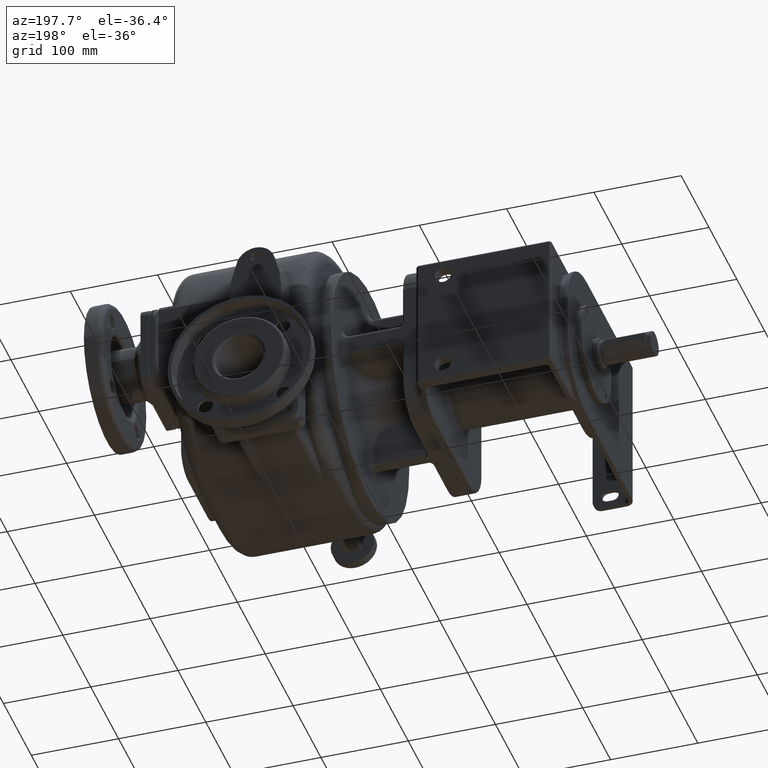
[diagram: clean part render]
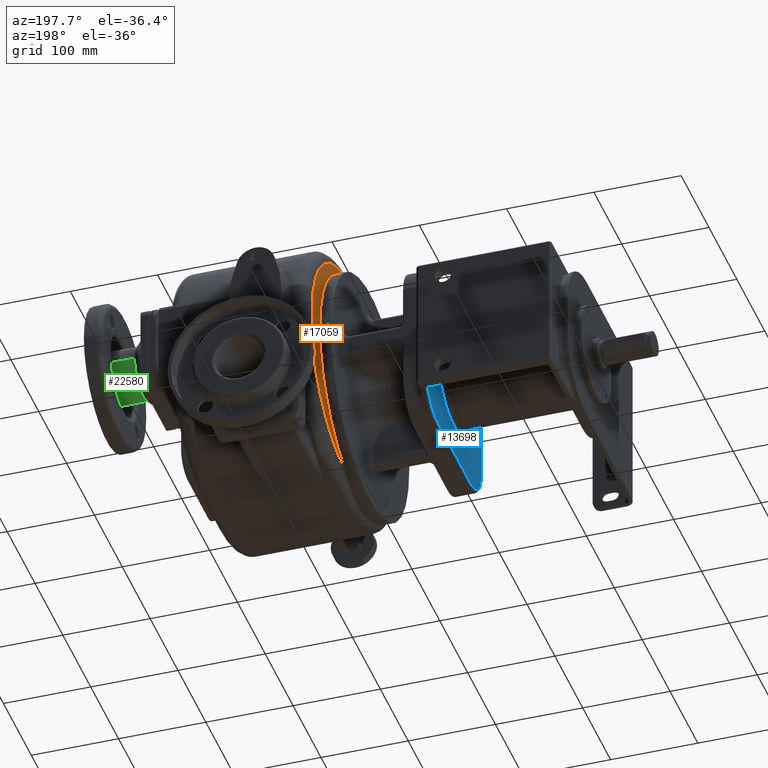
[diagram: same view with three faces highlighted in distinct colors, each labeled with its STEP entity id]
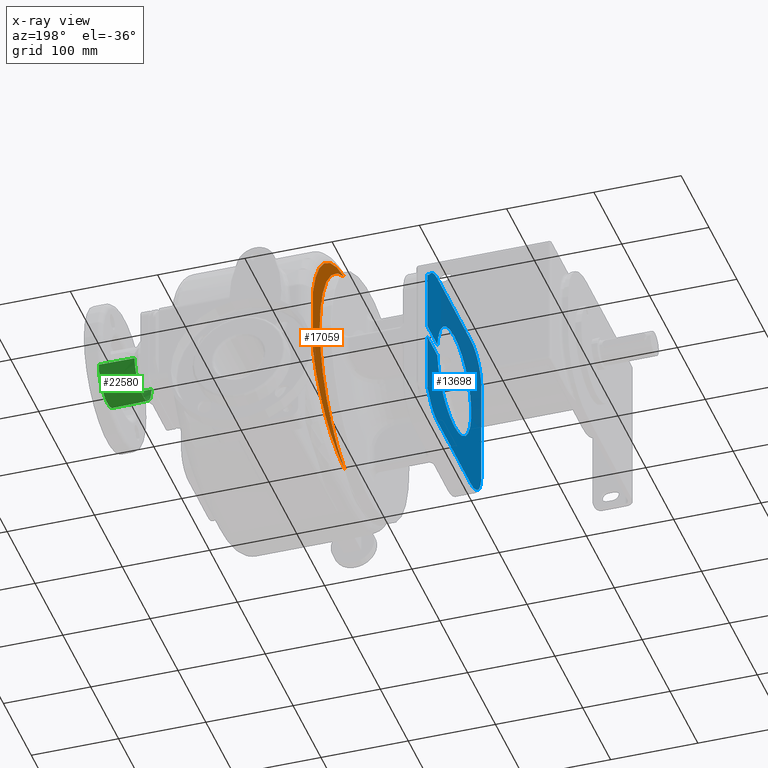
[diagram: x-ray of the same camera — body ghosted, the three highlighted faces saturated]
A machine part, auxiliary view with three faces highlighted in distinct colors.
The next image is the same camera in x-ray (body ghosted, the three faces saturated) — at least one of them is partly hidden behind the body in this view.
Their STEP definitions:

[orange] entity #17059 — the highlighted planar face has unit normal (1, 0, 0).
#2342=CARTESIAN_POINT('',(-5.5E1,1.5E2,0.E0));
#2343=DIRECTION('',(-1.E0,0.E0,0.E0));
#2344=DIRECTION('',(0.E0,3.789755434408E-1,9.254066876102E-1));
#2345=AXIS2_PLACEMENT_3D('',#2342,#2343,#2344);
#2347=CARTESIAN_POINT('',(-5.5E1,1.5E2,0.E0));
#2348=DIRECTION('',(-1.E0,0.E0,0.E0));
#2349=DIRECTION('',(0.E0,1.E0,0.E0));
#2350=AXIS2_PLACEMENT_3D('',#2347,#2348,#2349);
#2352=CARTESIAN_POINT('',(-5.5E1,1.935088238347E2,0.E0));
#2353=DIRECTION('',(-1.E0,0.E0,0.E0));
#2354=DIRECTION('',(0.E0,9.233049313065E-1,-3.840677073447E-1));
#2355=AXIS2_PLACEMENT_3D('',#2352,#2353,#2354);
#2357=DIRECTION('',(0.E0,8.685984680238E-12,-1.E0));
#2358=VECTOR('',#2357,8.177063911726E1);
#2359=CARTESIAN_POINT('',(-5.5E1,3.140000000005E2,3.164960389478E1));
#2360=LINE('',#2359,#2358);
#2361=CARTESIAN_POINT('',(-5.5E1,1.873961078411E2,0.E0));
#2362=DIRECTION('',(-1.E0,0.E0,0.E0));
#2363=DIRECTION('',(0.E0,1.200035880505E-1,9.927734579727E-1));
#2364=AXIS2_PLACEMENT_3D('',#2361,#2362,#2363);
#11140=CARTESIAN_POINT('',(-5.5E1,3.140000000005E2,3.164960389478E1));
#11141=CARTESIAN_POINT('',(-5.5E1,3.140000000012E2,-5.012103522249E1));
#11142=VERTEX_POINT('',#11140);
#11143=VERTEX_POINT('',#11141);
#11522=CARTESIAN_POINT('',(-5.5E1,2.030565760817E2,1.295569362654E2));
#11523=CARTESIAN_POINT('',(-5.5E1,2.9E2,-4.973797150321E-14));
#11524=VERTEX_POINT('',#11522);
#11525=VERTEX_POINT('',#11523);
#11526=CARTESIAN_POINT('',(-5.5E1,2.012857778968E2,-1.302680658700E2));
#11527=VERTEX_POINT('',#11526);
#17043=CARTESIAN_POINT('',(-5.5E1,1.5E2,0.E0));
#17044=DIRECTION('',(1.E0,0.E0,0.E0));
#17045=DIRECTION('',(0.E0,0.E0,1.E0));
#17046=AXIS2_PLACEMENT_3D('',#17043,#17044,#17045);
#17047=PLANE('',#17046);
#17049=ORIENTED_EDGE('',*,*,#17048,.T.);
#17050=ORIENTED_EDGE('',*,*,#17027,.T.);
#17052=ORIENTED_EDGE('',*,*,#17051,.F.);
#17054=ORIENTED_EDGE('',*,*,#17053,.F.);
#17056=ORIENTED_EDGE('',*,*,#17055,.F.);
#17057=EDGE_LOOP('',(#17049,#17050,#17052,#17054,#17056));
#17058=FACE_OUTER_BOUND('',#17057,.F.);
#17059=ADVANCED_FACE('',(#17058),#17047,.F.);
#2346=CIRCLE('',#2345,1.4E2);
#2351=CIRCLE('',#2350,1.4E2);
#2356=CIRCLE('',#2355,1.305E2);
#2365=CIRCLE('',#2364,1.305E2);
#17027=EDGE_CURVE('',#11525,#11527,#2351,.T.);
#17048=EDGE_CURVE('',#11524,#11525,#2346,.T.);
#17051=EDGE_CURVE('',#11143,#11527,#2356,.T.);
#17053=EDGE_CURVE('',#11142,#11143,#2360,.T.);
#17055=EDGE_CURVE('',#11524,#11142,#2365,.T.);

[blue] entity #13698 — the highlighted planar face has unit normal (1, 0, 0).
#229=DIRECTION('',(-6.578854630226E-11,-1.E0,0.E0));
#230=VECTOR('',#229,3.640297037011E1);
#231=CARTESIAN_POINT('',(-1.645E2,2.47E2,-7.E0));
#232=LINE('',#231,#230);
#233=DIRECTION('',(6.578854630226E-11,1.E0,0.E0));
#234=VECTOR('',#233,3.640297037011E1);
#235=CARTESIAN_POINT('',(-1.645000000024E2,2.105970296299E2,7.E0));
#236=LINE('',#235,#234);
#237=DIRECTION('',(-8.555937387140E-11,0.E0,1.E0));
#238=VECTOR('',#237,7.035088935933E1);
#239=CARTESIAN_POINT('',(-1.645E2,2.47E2,7.E0));
#240=LINE('',#239,#238);
#241=CARTESIAN_POINT('',(-1.645E2,2.5E2,9.E1));
#242=DIRECTION('',(1.E0,0.E0,0.E0));
#243=DIRECTION('',(0.E0,-8.E-1,-6.E-1));
#244=AXIS2_PLACEMENT_3D('',#241,#242,#243);
#246=CARTESIAN_POINT('',(-1.645E2,2.1E2,6.E1));
#247=DIRECTION('',(-1.E0,0.E0,0.E0));
#248=DIRECTION('',(0.E0,0.E0,1.E0));
#249=AXIS2_PLACEMENT_3D('',#246,#247,#248);
#251=DIRECTION('',(0.E0,1.E0,0.E0));
#252=VECTOR('',#251,1.2E2);
#253=CARTESIAN_POINT('',(-1.645E2,9.E1,9.7E1));
#254=LINE('',#253,#252);
#255=CARTESIAN_POINT('',(-1.645E2,9.E1,6.E1));
#256=DIRECTION('',(-1.E0,0.E0,0.E0));
#257=DIRECTION('',(0.E0,-1.E0,0.E0));
#258=AXIS2_PLACEMENT_3D('',#255,#256,#257);
#260=DIRECTION('',(0.E0,0.E0,1.E0));
#261=VECTOR('',#260,1.2E2);
#262=CARTESIAN_POINT('',(-1.645E2,5.3E1,-6.E1));
#263=LINE('',#262,#261);
#264=CARTESIAN_POINT('',(-1.645E2,9.E1,-6.E1));
#265=DIRECTION('',(-1.E0,0.E0,0.E0));
#266=DIRECTION('',(0.E0,0.E0,-1.E0));
#267=AXIS2_PLACEMENT_3D('',#264,#265,#266);
#269=DIRECTION('',(0.E0,-1.E0,0.E0));
#270=VECTOR('',#269,1.2E2);
#271=CARTESIAN_POINT('',(-1.645E2,2.1E2,-9.7E1));
#272=LINE('',#271,#270);
#273=CARTESIAN_POINT('',(-1.645E2,2.1E2,-6.E1));
#274=DIRECTION('',(-1.E0,0.E0,0.E0));
#275=DIRECTION('',(0.E0,8.E-1,-6.E-1));
#276=AXIS2_PLACEMENT_3D('',#273,#274,#275);
#278=CARTESIAN_POINT('',(-1.645E2,2.5E2,-9.E1));
#279=DIRECTION('',(1.E0,0.E0,0.E0));
#280=DIRECTION('',(0.E0,-2.307692307692E-1,9.730085108210E-1));
#281=AXIS2_PLACEMENT_3D('',#278,#279,#280);
#283=DIRECTION('',(8.531737829603E-11,0.E0,1.E0));
#284=VECTOR('',#283,7.035088935933E1);
#285=CARTESIAN_POINT('',(-1.645000000060E2,2.47E2,-7.735088935933E1));
#286=LINE('',#285,#284);
#310=CARTESIAN_POINT('',(-1.645000000024E2,2.105970296299E2,7.E0));
#312=CARTESIAN_POINT('',(-1.645E2,1.5E2,0.E0));
#313=DIRECTION('',(1.E0,0.E0,0.E0));
#314=DIRECTION('',(0.E0,9.933939283632E-1,1.147540983628E-1));
#315=AXIS2_PLACEMENT_3D('',#312,#313,#314);
#12596=CARTESIAN_POINT('',(-1.645E2,5.3E1,6.E1));
#12597=CARTESIAN_POINT('',(-1.645E2,9.E1,9.7E1));
#12598=VERTEX_POINT('',#12596);
#12599=VERTEX_POINT('',#12597);
#12604=CARTESIAN_POINT('',(-1.645E2,2.1E2,9.7E1));
#12605=VERTEX_POINT('',#12604);
#12608=CARTESIAN_POINT('',(-1.645E2,2.396E2,8.22E1));
#12609=VERTEX_POINT('',#12608);
#12612=CARTESIAN_POINT('',(-1.645E2,2.396E2,-8.22E1));
#12613=CARTESIAN_POINT('',(-1.645E2,2.1E2,-9.7E1));
#12614=VERTEX_POINT('',#12612);
#12615=VERTEX_POINT('',#12613);
#12620=CARTESIAN_POINT('',(-1.645E2,9.E1,-9.7E1));
#12621=VERTEX_POINT('',#12620);
#12624=CARTESIAN_POINT('',(-1.645E2,5.3E1,-6.E1));
#12625=VERTEX_POINT('',#12624);
#12676=CARTESIAN_POINT('',(-1.645E2,2.47E2,-7.735088935933E1));
#12677=VERTEX_POINT('',#12676);
#12680=CARTESIAN_POINT('',(-1.645E2,2.47E2,7.735088935933E1));
#12681=VERTEX_POINT('',#12680);
#12702=CARTESIAN_POINT('',(-1.645E2,2.47E2,-7.E0));
#12703=CARTESIAN_POINT('',(-1.645000000024E2,2.105970296299E2,-7.E0));
#12704=VERTEX_POINT('',#12702);
#12705=VERTEX_POINT('',#12703);
#12732=VERTEX_POINT('',#310);
#12733=CARTESIAN_POINT('',(-1.645E2,2.47E2,7.E0));
#12734=VERTEX_POINT('',#12733);
#13664=CARTESIAN_POINT('',(-1.645E2,1.5E2,0.E0));
#13665=DIRECTION('',(1.E0,0.E0,0.E0));
#13666=DIRECTION('',(0.E0,0.E0,1.E0));
#13667=AXIS2_PLACEMENT_3D('',#13664,#13665,#13666);
#13668=PLANE('',#13667);
#13669=ORIENTED_EDGE('',*,*,#13654,.T.);
#13671=ORIENTED_EDGE('',*,*,#13670,.F.);
#13673=ORIENTED_EDGE('',*,*,#13672,.T.);
#13675=ORIENTED_EDGE('',*,*,#13674,.T.);
#13677=ORIENTED_EDGE('',*,*,#13676,.F.);
#13679=ORIENTED_EDGE('',*,*,#13678,.F.);
#13681=ORIENTED_EDGE('',*,*,#13680,.F.);
#13683=ORIENTED_EDGE('',*,*,#13682,.F.);
#13685=ORIENTED_EDGE('',*,*,#13684,.F.);
#13687=ORIENTED_EDGE('',*,*,#13686,.F.);
#13689=ORIENTED_EDGE('',*,*,#13688,.F.);
#13691=ORIENTED_EDGE('',*,*,#13690,.F.);
#13693=ORIENTED_EDGE('',*,*,#13692,.F.);
#13695=ORIENTED_EDGE('',*,*,#13694,.T.);
#13696=EDGE_LOOP('',(#13669,#13671,#13673,#13675,#13677,#13679,#13681,#13683,
#13685,#13687,#13689,#13691,#13693,#13695));
#13697=FACE_OUTER_BOUND('',#13696,.F.);
#13698=ADVANCED_FACE('',(#13697),#13668,.F.);
#245=CIRCLE('',#244,1.3E1);
#250=CIRCLE('',#249,3.7E1);
#259=CIRCLE('',#258,3.7E1);
#268=CIRCLE('',#267,3.7E1);
#277=CIRCLE('',#276,3.7E1);
#282=CIRCLE('',#281,1.3E1);
#316=CIRCLE('',#315,6.1E1);
#13654=EDGE_CURVE('',#12704,#12705,#232,.T.);
#13670=EDGE_CURVE('',#12732,#12705,#316,.T.);
#13672=EDGE_CURVE('',#12732,#12734,#236,.T.);
#13674=EDGE_CURVE('',#12734,#12681,#240,.T.);
#13676=EDGE_CURVE('',#12609,#12681,#245,.T.);
#13678=EDGE_CURVE('',#12605,#12609,#250,.T.);
#13680=EDGE_CURVE('',#12599,#12605,#254,.T.);
#13682=EDGE_CURVE('',#12598,#12599,#259,.T.);
#13684=EDGE_CURVE('',#12625,#12598,#263,.T.);
#13686=EDGE_CURVE('',#12621,#12625,#268,.T.);
#13688=EDGE_CURVE('',#12615,#12621,#272,.T.);
#13690=EDGE_CURVE('',#12614,#12615,#277,.T.);
#13692=EDGE_CURVE('',#12677,#12614,#282,.T.);
#13694=EDGE_CURVE('',#12677,#12704,#286,.T.);

[green] entity #22580 — the highlighted conical surface has half-angle 0.699 deg.
#6407=CARTESIAN_POINT('',(1.51E2,2.79E2,-9.5E0));
#6408=DIRECTION('',(1.E0,0.E0,0.E0));
#6409=DIRECTION('',(0.E0,-1.E0,0.E0));
#6410=AXIS2_PLACEMENT_3D('',#6407,#6408,#6409);
#6417=CARTESIAN_POINT('',(1.920060966544E2,2.79E2,-9.5E0));
#6418=DIRECTION('',(1.E0,0.E0,0.E0));
#6419=DIRECTION('',(0.E0,-1.E0,0.E0));
#6420=AXIS2_PLACEMENT_3D('',#6417,#6418,#6419);
#6422=DIRECTION('',(-9.999256588475E-1,-1.219330875238E-2,0.E0));
#6423=VECTOR('',#6422,4.100914532150E1);
#6424=CARTESIAN_POINT('',(1.920060966544E2,3.096500371706E2,-9.5E0));
#6425=LINE('',#6424,#6423);
#6431=DIRECTION('',(-9.999256588475E-1,1.219330875238E-2,0.E0));
#6432=VECTOR('',#6431,4.100914532150E1);
#6433=CARTESIAN_POINT('',(1.920060966544E2,2.483499628294E2,-9.5E0));
#6434=LINE('',#6433,#6432);
#12078=CARTESIAN_POINT('',(1.920060966544E2,2.483499628294E2,-9.5E0));
#12080=VERTEX_POINT('',#12078);
#12090=CARTESIAN_POINT('',(1.920060966544E2,3.096500371706E2,-9.5E0));
#12092=VERTEX_POINT('',#12090);
#12189=CARTESIAN_POINT('',(1.51E2,2.4885E2,-9.5E0));
#12190=CARTESIAN_POINT('',(1.51E2,3.0915E2,-9.5E0));
#12191=VERTEX_POINT('',#12189);
#12192=VERTEX_POINT('',#12190);
#22566=CARTESIAN_POINT('',(1.715030483272E2,2.79E2,-9.5E0));
#22567=DIRECTION('',(1.E0,0.E0,0.E0));
#22568=DIRECTION('',(0.E0,1.E0,0.E0));
#22569=AXIS2_PLACEMENT_3D('',#22566,#22567,#22568);
#22570=CONICAL_SURFACE('',#22569,3.040001858529E1,6.986424425252E-1);
#22571=ORIENTED_EDGE('',*,*,#22559,.F.);
#22573=ORIENTED_EDGE('',*,*,#22572,.F.);
#22575=ORIENTED_EDGE('',*,*,#22574,.T.);
#22577=ORIENTED_EDGE('',*,*,#22576,.T.);
#22578=EDGE_LOOP('',(#22571,#22573,#22575,#22577));
#22579=FACE_OUTER_BOUND('',#22578,.F.);
#22580=ADVANCED_FACE('',(#22579),#22570,.T.);
#6411=CIRCLE('',#6410,3.015E1);
#6421=CIRCLE('',#6420,3.065003717058E1);
#22559=EDGE_CURVE('',#12191,#12192,#6411,.T.);
#22572=EDGE_CURVE('',#12080,#12191,#6434,.T.);
#22574=EDGE_CURVE('',#12080,#12092,#6421,.T.);
#22576=EDGE_CURVE('',#12092,#12192,#6425,.T.);